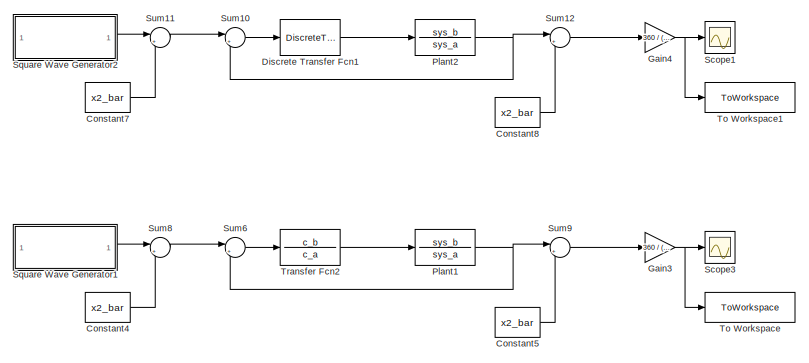
[diagram: root canvas - part 1/3, right side, full height]
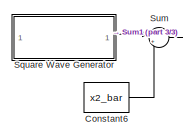
[diagram: root canvas - part 2/3, top left region]
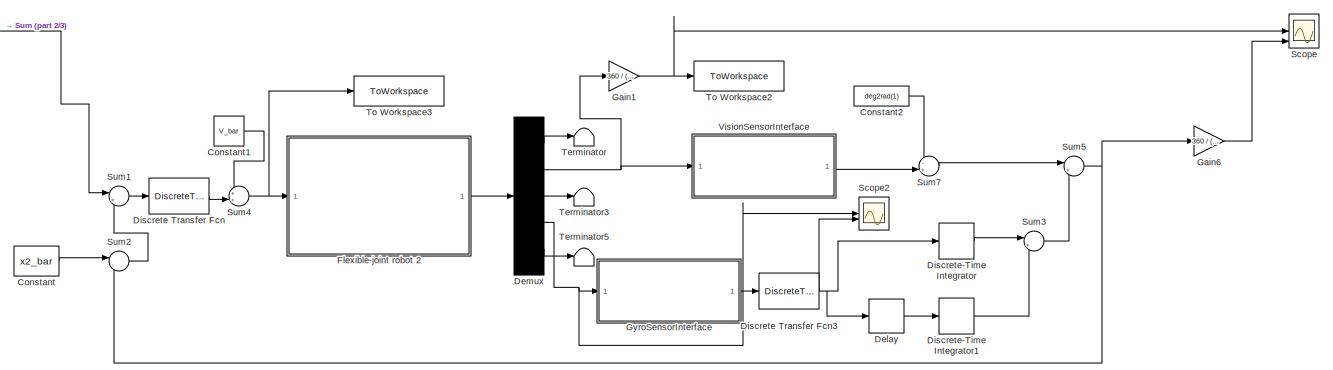
[diagram: root canvas - part 3/3, center side, full height]
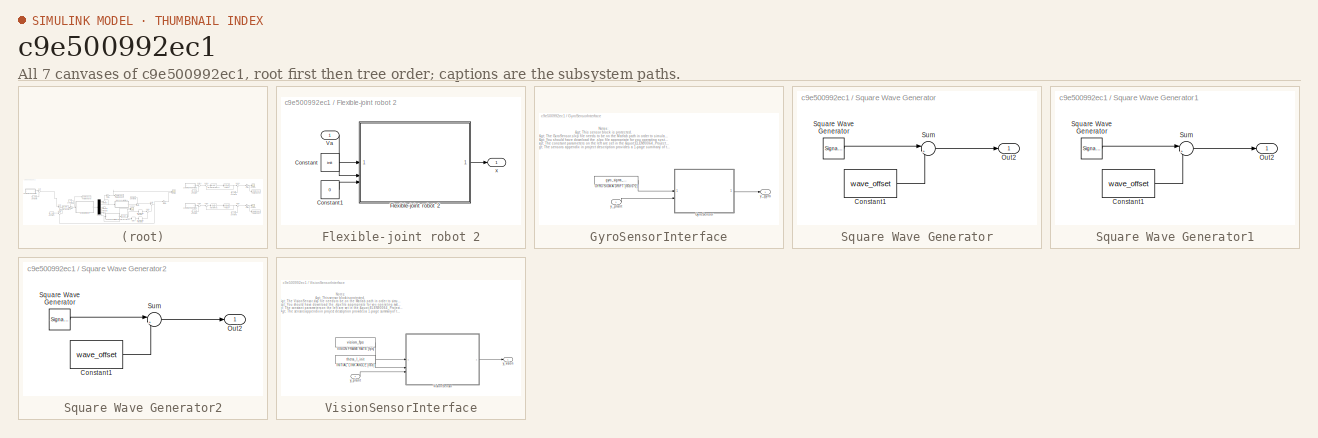
[diagram: thumbnail index - all 7 canvases of the model, root first then tree order]
MODEL slx_c9e500992ec1
KIND model
CONFIG AbsTol = auto
CONFIG EnableMultiTasking = off
CONFIG FixedStep = auto
CONFIG MaxStep = auto
CONFIG MinStep = auto
CONFIG RelTol = 1e-3
CONFIG SampleTimeConstraint = Unconstrained
CONFIG SolverName = VariableStepAuto
CONFIG StartTime = 0.0
CONFIG StopTime = 21
BLOCK [Constant] Constant
  Value = x2_bar
BLOCK [Constant] Constant1
  Value = V_bar
BLOCK [Constant] Constant2
  Value = deg2rad(1)
BLOCK [Constant] Constant4
  Value = x2_bar
BLOCK [Constant] Constant5
  Value = x2_bar
BLOCK [Constant] Constant6
  Value = x2_bar
BLOCK [Constant] Constant7
  Value = x2_bar
BLOCK [Constant] Constant8
  Value = x2_bar
BLOCK [Delay] Delay
  DelayLength = round(time_delay/sampling_time)
  InitialCondition = 0
  InputPortMap = u0
BLOCK [Demux] Demux
  Outputs = 5
BLOCK [DiscreteTransferFcn] Discrete Transfer Fcn
  Denominator = c_disc_a
  InputPortMap = u0
  Numerator = c_disc_b
  SampleTime = sampling_time
BLOCK [DiscreteTransferFcn] Discrete Transfer Fcn1
  Denominator = c_disc_a
  InputPortMap = u0
  Numerator = c_disc_b
  SampleTime = sampling_time
BLOCK [DiscreteTransferFcn] Discrete Transfer Fcn3
  Denominator = [1 -0.95]
  InputPortMap = u0
  Numerator = [1 -1]
  SampleTime = sampling_time
BLOCK [DiscreteIntegrator] Discrete-Time Integrator
  ICPrevOutput = DiscIntNeverNeededParam
  ICPrevScaledInput = DiscIntNeverNeededParam
  InitialCondition = theta_l_init
  InitialConditionSetting = Auto
  SampleTime = -1
BLOCK [DiscreteIntegrator] Discrete-Time Integrator1
  ICPrevOutput = DiscIntNeverNeededParam
  ICPrevScaledInput = DiscIntNeverNeededParam
  InitialCondition = theta_l_init
  InitialConditionSetting = Auto
  SampleTime = -1
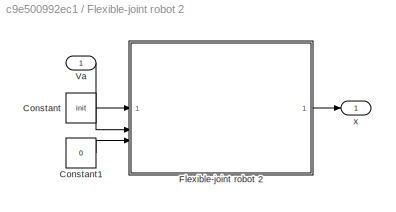
BLOCK [SubSystem] Flexible-joint robot 2
BLOCK [Constant] Flexible-joint robot 2/Constant
  Value = init
BLOCK [Constant] Flexible-joint robot 2/Constant1
  Value = 0
BLOCK [ModelReference] Flexible-joint robot 2/Flexible-joint robot 2
  CopyOfModelProtected = on
  ModelNameDialog = Flexible_joint_robot_2
  ModelReferenceVersion = 1.65
BLOCK [Inport] Flexible-joint robot 2/Va
BLOCK [Outport] Flexible-joint robot 2/x
BLOCK [Gain] Gain1
  Gain = 360 / (2 * pi)
BLOCK [Gain] Gain3
  Gain = 360 / (2 * pi)
BLOCK [Gain] Gain4
  Gain = 360 / (2 * pi)
BLOCK [Gain] Gain6
  Gain = 360 / (2 * pi)
BLOCK [SubSystem] GyroSensorInterface
  TreatAsAtomicUnit = on
BLOCK [Constant] GyroSensorInterface/GYRO SIGMA DRIFT [rad//s^2]
  Value = gyro_sigma_drift
BLOCK [ModelReference] GyroSensorInterface/GyroSensor
  CopyOfModelProtected = on
  ModelNameDialog = GyroSensor.slxp
  ModelReferenceVersion = 1.18
BLOCK [Outport] GyroSensorInterface/y_gyro
BLOCK [Inport] GyroSensorInterface/y_plant
BLOCK [TransferFcn] Plant1
  Denominator = sys_a
  Numerator = sys_b
BLOCK [TransferFcn] Plant2
  Denominator = sys_a
  Numerator = sys_b
BLOCK [Scope] Scope
  Floating = off
  NumInputPorts = 4
  ScopeSpecificationString = Simulink.scopes.TimeScopeBlockCfg('CurrentConfiguration', extmgr.ConfigurationSet(extmgr.Configuration('Core','General UI',true),extmgr.Configuration('Core','Source UI',true),extmgr.Configuration('Sources','WiredSimulink',true,'DataLoggingVariableName','ScopeData1'),extmgr.Configuration('Visuals','Time Domain',true,'SerializedDisplays',{struct('MinYLimReal','41.28683','MaxYLimReal','48.89353','YLa...<+1786ch>
BLOCK [Scope] Scope1
  Floating = off
  NumInputPorts = 1
  ScopeSpecificationString = Simulink.scopes.TimeScopeBlockCfg('CurrentConfiguration', extmgr.ConfigurationSet(extmgr.Configuration('Core','General UI',true),extmgr.Configuration('Core','Source UI',true),extmgr.Configuration('Sources','WiredSimulink',true,'DataLoggingVariableName','ScopeData1'),extmgr.Configuration('Visuals','Time Domain',true,'SerializedDisplays',{struct('MinYLimReal','9.37649','MaxYLimReal','50.65635','YLab...<+1410ch>
BLOCK [Scope] Scope2
  Floating = off
  NumInputPorts = 2
  ScopeSpecificationString = Simulink.scopes.TimeScopeBlockCfg('CurrentConfiguration', extmgr.ConfigurationSet(extmgr.Configuration('Core','General UI',true),extmgr.Configuration('Core','Source UI',true),extmgr.Configuration('Sources','WiredSimulink',true,'DataLoggingVariableName','ScopeData2'),extmgr.Configuration('Visuals','Time Domain',true,'SerializedDisplays',{struct('MinYLimReal','-3.08823','MaxYLimReal','3.24724','YLab...<+1421ch>
BLOCK [Scope] Scope3
  Floating = off
  NumInputPorts = 1
  ScopeSpecificationString = Simulink.scopes.TimeScopeBlockCfg('CurrentConfiguration', extmgr.ConfigurationSet(extmgr.Configuration('Core','General UI',true),extmgr.Configuration('Core','Source UI',true),extmgr.Configuration('Sources','WiredSimulink',true,'DataLoggingVariableName','ScopeData1'),extmgr.Configuration('Visuals','Time Domain',true,'SerializedDisplays',{struct('MinYLimReal','9.37649','MaxYLimReal','50.65635','YLab...<+1410ch>
BLOCK [SubSystem] Square Wave Generator
BLOCK [Constant] Square Wave Generator/Constant1
  Value = wave_offset
BLOCK [Outport] Square Wave Generator/Out2
BLOCK [SignalGenerator] Square Wave Generator/Square Wave Generator
  Amplitude = wave_amplitude
  Frequency = 1 / wave_period
  WaveForm = square
BLOCK [Sum] Square Wave Generator/Sum
  Inputs = |++
BLOCK [SubSystem] Square Wave Generator1
BLOCK [Constant] Square Wave Generator1/Constant1
  Value = wave_offset
BLOCK [Outport] Square Wave Generator1/Out2
BLOCK [SignalGenerator] Square Wave Generator1/Square Wave Generator
  Amplitude = wave_amplitude
  Frequency = 1 / wave_period
  WaveForm = square
BLOCK [Sum] Square Wave Generator1/Sum
  Inputs = |++
BLOCK [SubSystem] Square Wave Generator2
BLOCK [Constant] Square Wave Generator2/Constant1
  Value = wave_offset
BLOCK [Outport] Square Wave Generator2/Out2
BLOCK [SignalGenerator] Square Wave Generator2/Square Wave Generator
  Amplitude = wave_amplitude
  Frequency = 1 / wave_period
  WaveForm = square
BLOCK [Sum] Square Wave Generator2/Sum
  Inputs = |++
BLOCK [Sum] Sum
  Inputs = |+-
BLOCK [Sum] Sum1
  Inputs = |+-
BLOCK [Sum] Sum10
  Inputs = |+-
BLOCK [Sum] Sum11
  Inputs = |+-
BLOCK [Sum] Sum12
  Inputs = |++
BLOCK [Sum] Sum2
  Inputs = |-+
BLOCK [Sum] Sum3
  Inputs = |+-
BLOCK [Sum] Sum4
  Inputs = ++|
BLOCK [Sum] Sum5
  Inputs = |++
BLOCK [Sum] Sum6
  Inputs = |+-
BLOCK [Sum] Sum7
  Inputs = -+|
BLOCK [Sum] Sum8
  Inputs = |+-
BLOCK [Sum] Sum9
  Inputs = |++
BLOCK [Terminator] Terminator
BLOCK [Terminator] Terminator3
BLOCK [Terminator] Terminator5
BLOCK [ToWorkspace] To Workspace
  FixptAsFi = on
  MaxDataPoints = inf
  SampleTime = -1
  SaveFormat = Timeseries
  VariableName = ctime
BLOCK [ToWorkspace] To Workspace1
  FixptAsFi = on
  MaxDataPoints = inf
  SampleTime = -1
  SaveFormat = Timeseries
  VariableName = dtime
BLOCK [ToWorkspace] To Workspace2
  FixptAsFi = on
  MaxDataPoints = inf
  SampleTime = -1
  SaveFormat = Timeseries
  VariableName = nonlinearpos
BLOCK [ToWorkspace] To Workspace3
  FixptAsFi = on
  MaxDataPoints = inf
  SampleTime = -1
  SaveFormat = Timeseries
  VariableName = voltage
BLOCK [TransferFcn] Transfer Fcn2
  Denominator = c_a
  Numerator = c_b
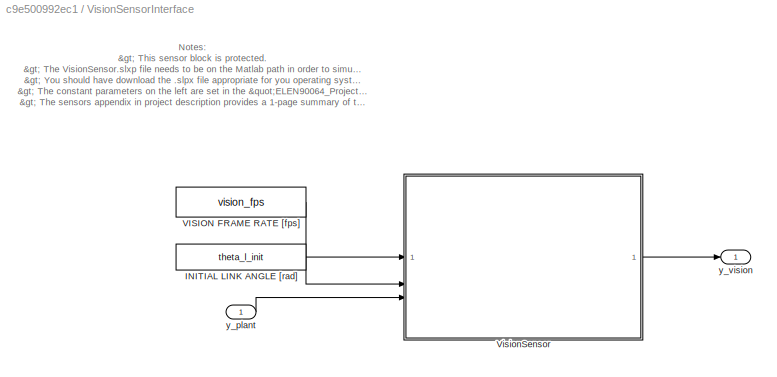
BLOCK [SubSystem] VisionSensorInterface
  TreatAsAtomicUnit = on
BLOCK [Constant] VisionSensorInterface/INITIAL LINK ANGLE [rad]
  Value = theta_l_init
BLOCK [Constant] VisionSensorInterface/VISION FRAME RATE [fps]
  Value = vision_fps
BLOCK [ModelReference] VisionSensorInterface/VisionSensor
  CopyOfModelProtected = on
  ModelNameDialog = VisionSensor.slxp
  ModelReferenceVersion = 1.19
BLOCK [Inport] VisionSensorInterface/y_plant
BLOCK [Outport] VisionSensorInterface/y_vision
ANNOTATION GyroSensorInterface: Notes: > This sensor block is protected. > The GyroSensor.slxp file needs to be on the Matlab path in order to simulate this sensor. > You should have download the .slpx file appropriate for you operating system {Windows, Mac, Linux}. > The constant parameters on the left are set in the " ELEN90064_Project_Parameters.m " script. > The sensors appendix in project description provides a 1-page summa...<+179ch>
ANNOTATION VisionSensorInterface: Notes: > This sensor block is protected. > The VisionSensor.slxp file needs to be on the Matlab path in order to simulate this sensor. > You should have download the .slpx file appropriate for you operating system {Windows, Mac, Linux}. > The constant parameters on the left are set in the "ELEN90064_Project_Parameters.m" script. > The sensors appendix in project description provides a 1-page summa...<+179ch>
LINE Constant1:1 -> Sum4:1
LINE Constant2:1 -> Sum7:1
LINE Constant4:1 -> Sum8:2
LINE Constant5:1 -> Sum9:2
LINE Constant6:1 -> Sum:2
LINE Constant7:1 -> Sum11:2
LINE Constant8:1 -> Sum12:2
LINE Constant:1 -> Sum2:1
LINE Delay:1 -> Discrete-Time Integrator1:1
LINE Demux:1 -> Terminator:1
NET Demux:2 -> Gain1:1, VisionSensorInterface:1
LINE Demux:3 -> Terminator3:1
NET Demux:4 -> GyroSensorInterface:1, Scope2:1
LINE Demux:5 -> Terminator5:1
LINE Discrete Transfer Fcn1:1 -> Plant2:1
NET Discrete Transfer Fcn3:1 -> Delay:1, Discrete-Time Integrator:1, Scope2:2
LINE Discrete Transfer Fcn:1 -> Sum4:2
LINE Discrete-Time Integrator1:1 -> Sum3:2
LINE Discrete-Time Integrator:1 -> Sum3:1
LINE Flexible-joint robot 2/Constant1:1 -> Flexible-joint robot 2/Flexible-joint robot 2:3
LINE Flexible-joint robot 2/Constant:1 -> Flexible-joint robot 2/Flexible-joint robot 2:2
LINE Flexible-joint robot 2/Flexible-joint robot 2:1 -> Flexible-joint robot 2/x:1
LINE Flexible-joint robot 2/Va:1 -> Flexible-joint robot 2/Flexible-joint robot 2:1
LINE Flexible-joint robot 2:1 -> Demux:1
NET Gain1:1 -> Scope:1, To Workspace2:1
NET Gain3:1 -> Scope3:1, To Workspace:1
NET Gain4:1 -> Scope1:1, To Workspace1:1
LINE Gain6:1 -> Scope:4
LINE GyroSensorInterface/GYRO SIGMA DRIFT [rad//s^2]:1 -> GyroSensorInterface/GyroSensor:1
LINE GyroSensorInterface/GyroSensor:1 -> GyroSensorInterface/y_gyro:1
LINE GyroSensorInterface/y_plant:1 -> GyroSensorInterface/GyroSensor:2
LINE GyroSensorInterface:1 -> Discrete Transfer Fcn3:1
NET Plant1:1 -> Sum6:2, Sum9:1
NET Plant2:1 -> Sum10:2, Sum12:1
LINE Square Wave Generator/Constant1:1 -> Square Wave Generator/Sum:2
LINE Square Wave Generator/Square Wave Generator:1 -> Square Wave Generator/Sum:1
LINE Square Wave Generator/Sum:1 -> Square Wave Generator/Out2:1
LINE Square Wave Generator1/Constant1:1 -> Square Wave Generator1/Sum:2
LINE Square Wave Generator1/Square Wave Generator:1 -> Square Wave Generator1/Sum:1
LINE Square Wave Generator1/Sum:1 -> Square Wave Generator1/Out2:1
LINE Square Wave Generator1:1 -> Sum8:1
LINE Square Wave Generator2/Constant1:1 -> Square Wave Generator2/Sum:2
LINE Square Wave Generator2/Square Wave Generator:1 -> Square Wave Generator2/Sum:1
LINE Square Wave Generator2/Sum:1 -> Square Wave Generator2/Out2:1
LINE Square Wave Generator2:1 -> Sum11:1
LINE Square Wave Generator:1 -> Sum:1
LINE Sum10:1 -> Discrete Transfer Fcn1:1
LINE Sum11:1 -> Sum10:1
LINE Sum12:1 -> Gain4:1
LINE Sum1:1 -> Discrete Transfer Fcn:1
LINE Sum2:1 -> Sum1:2
LINE Sum3:1 -> Sum5:2
NET Sum4:1 -> Flexible-joint robot 2:1, To Workspace3:1
NET Sum5:1 -> Gain6:1, Sum2:2
LINE Sum6:1 -> Transfer Fcn2:1
LINE Sum7:1 -> Sum5:1
LINE Sum8:1 -> Sum6:1
LINE Sum9:1 -> Gain3:1
LINE Sum:1 -> Sum1:1
LINE Transfer Fcn2:1 -> Plant1:1
LINE VisionSensorInterface/INITIAL LINK ANGLE [rad]:1 -> VisionSensorInterface/VisionSensor:2
LINE VisionSensorInterface/VISION FRAME RATE [fps]:1 -> VisionSensorInterface/VisionSensor:1
LINE VisionSensorInterface/VisionSensor:1 -> VisionSensorInterface/y_vision:1
LINE VisionSensorInterface/y_plant:1 -> VisionSensorInterface/VisionSensor:3
LINE VisionSensorInterface:1 -> Sum7:2
note: NET lines group one-source signal fan-out (src -> all destinations, sorted); 1:1 wires keep LINE
